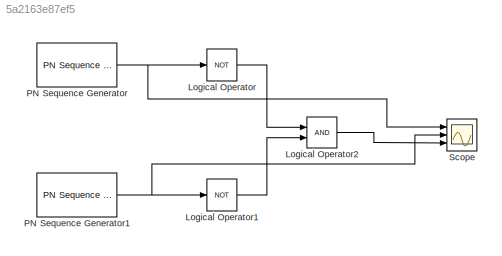
MODEL slx_5a2163e87ef5
KIND model
CONFIG AbsTol = auto
CONFIG EnableMultiTasking = off
CONFIG FixedStep = auto
CONFIG MaxStep = auto
CONFIG MinStep = auto
CONFIG RelTol = 1e-3
CONFIG SampleTimeConstraint = Unconstrained
CONFIG Solver = VariableStepAuto
CONFIG SolverName = VariableStepAuto
CONFIG StartTime = 0.0
CONFIG StopTime = 16
BLOCK [Logic] Logical Operator
  AllPortsSameDT = off
  Operator = NOT
  OutDataTypeStr = boolean
  Ports = [1, 1]
BLOCK [Logic] Logical Operator1
  AllPortsSameDT = off
  Operator = NOT
  OutDataTypeStr = boolean
  Ports = [1, 1]
BLOCK [Logic] Logical Operator2
  AllPortsSameDT = off
  OutDataTypeStr = boolean
  Ports = [2, 1]
BLOCK [Reference] PN Sequence Generator  REF=commseqgen3/PN Sequence
Generator
  Ports = [0, 1]
  SourceBlock = commseqgen3/PN Sequence\nGenerator
  SourceProductBaseCode = CM
  SourceType = PN Sequence Generator
BLOCK [Reference] PN Sequence Generator1  REF=commseqgen3/PN Sequence
Generator
  Ports = [0, 1]
  SourceBlock = commseqgen3/PN Sequence\nGenerator
  SourceProductBaseCode = CM
  SourceType = PN Sequence Generator
BLOCK [Scope] Scope
  Floating = off
  NumInputPorts = 3
  Ports = [3]
  ScopeSpecificationString = Simulink.scopes.TimeScopeBlockCfg('CurrentConfiguration', extmgr.ConfigurationSet(extmgr.Configuration('Core','General UI',true,'FigureColor',[1 1 1]),extmgr.Configuration('Core','Source UI',true),extmgr.Configuration('Sources','WiredSimulink',true),extmgr.Configuration('Visuals','Time Domain',true,'SerializedDisplays',{struct('MinYLimReal','-0.125','MaxYLimReal','1.125','YLabelReal','','MinYLimMa...<+3846ch>
LINE Logical Operator1:1 -> Logical Operator2:2
LINE Logical Operator2:1 -> Scope:3
LINE Logical Operator:1 -> Logical Operator2:1
NET PN Sequence Generator1:1 -> Logical Operator1:1, Scope:2
NET PN Sequence Generator:1 -> Logical Operator:1, Scope:1
note: NET lines group one-source signal fan-out (src -> all destinations, sorted); 1:1 wires keep LINE
